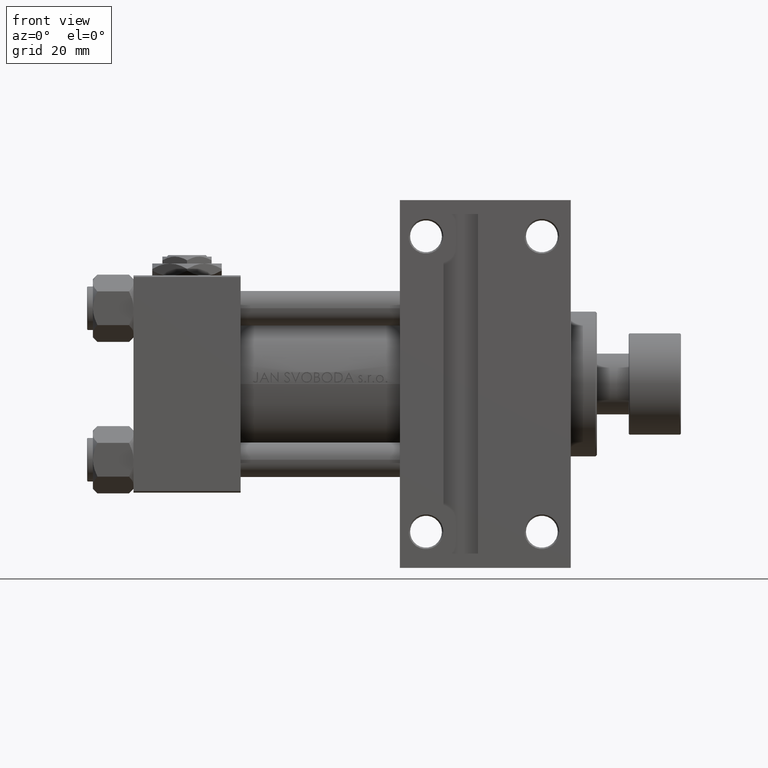
[diagram: clean part render]
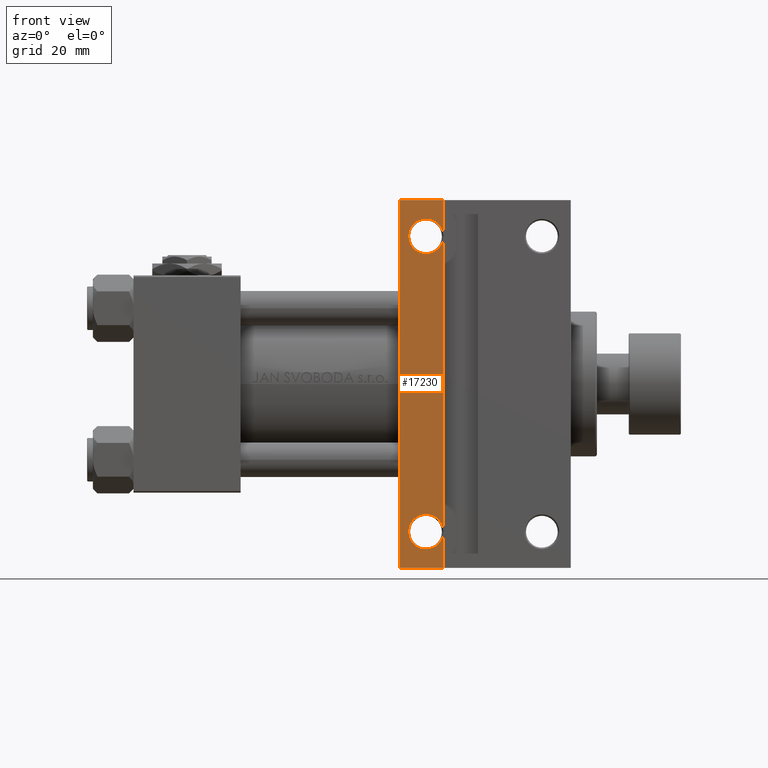
[diagram: same view with one face highlighted and labeled with its STEP entity id]
A machine part, front view. The second image highlights one B-rep face of the part: STEP entity #17230.
In plain terms, the highlighted planar face has unit normal (0, -1, 0).
Its self-contained STEP definition (entity closure, byte-faithful):
#105 = CARTESIAN_POINT ( 'NONE',  ( 100.9999999999999574, 50.99999999999999289, -37.50000000000000000 ) ) ;
#289 = EDGE_CURVE ( 'NONE', #12927, #33443, #41539, .T. ) ;
#454 = EDGE_LOOP ( 'NONE', ( #38828, #28274, #23543, #25735 ) ) ;
#623 = DIRECTION ( 'NONE',  ( -1.000000000000000000, 0.000000000000000000, 0.000000000000000000 ) ) ;
#1289 = EDGE_LOOP ( 'NONE', ( #38920, #48807 ) ) ;
#1717 = CARTESIAN_POINT ( 'NONE',  ( 91.99999999999998579, -63.50000000000000000, -37.50000000000000000 ) ) ;
#2334 = VERTEX_POINT ( 'NONE', #32263 ) ;
#3730 = CIRCLE ( 'NONE', #32907, 5.999500000000018929 ) ;
#4618 = ORIENTED_EDGE ( 'NONE', *, *, #5526, .T. ) ;
#5114 = DIRECTION ( 'NONE',  ( -1.000000000000000000, 0.000000000000000000, 0.000000000000000000 ) ) ;
#5526 = EDGE_CURVE ( 'NONE', #34748, #19124, #36085, .T. ) ;
#6908 = VERTEX_POINT ( 'NONE', #10654 ) ;
#7579 = AXIS2_PLACEMENT_3D ( 'NONE', #30463, #15497, #45945 ) ;
#7914 = FACE_BOUND ( 'NONE', #16872, .T. ) ;
#8112 = CARTESIAN_POINT ( 'NONE',  ( 100.9999999999999574, -50.99999999999999289, -37.50000000000000000 ) ) ;
#8880 = CARTESIAN_POINT ( 'NONE',  ( 106.9994999999999692, -50.99999999999999289, -37.50000000000000000 ) ) ;
#10059 = AXIS2_PLACEMENT_3D ( 'NONE', #105, #27487, #623 ) ;
#10654 = CARTESIAN_POINT ( 'NONE',  ( 107.0000000000000000, -63.50000000000000000, -37.50000000000000000 ) ) ;
#10748 = VERTEX_POINT ( 'NONE', #29274 ) ;
#10758 = CARTESIAN_POINT ( 'NONE',  ( 95.00049999999993133, 50.99999999999999289, -37.50000000000000000 ) ) ;
#11191 = FACE_BOUND ( 'NONE', #1289, .T. ) ;
#11410 = LINE ( 'NONE', #31190, #19394 ) ;
#11535 = CARTESIAN_POINT ( 'NONE',  ( 100.9999999999999574, -50.99999999999999289, -37.50000000000000000 ) ) ;
#12472 = DIRECTION ( 'NONE',  ( -0.000000000000000000, -0.000000000000000000, 1.000000000000000000 ) ) ;
#12927 = VERTEX_POINT ( 'NONE', #37139 ) ;
#12959 = CARTESIAN_POINT ( 'NONE',  ( 100.9999999999999574, 50.99999999999999289, -37.50000000000000000 ) ) ;
#14028 = AXIS2_PLACEMENT_3D ( 'NONE', #12959, #12472, #5114 ) ;
#15133 = DIRECTION ( 'NONE',  ( 0.000000000000000000, 1.000000000000000000, 0.000000000000000000 ) ) ;
#15151 = CARTESIAN_POINT ( 'NONE',  ( 92.00000000000000000, 63.50000000000000000, -37.50000000000000000 ) ) ;
#15338 = EDGE_CURVE ( 'NONE', #33443, #12927, #21414, .T. ) ;
#15497 = DIRECTION ( 'NONE',  ( 0.000000000000000000, 0.000000000000000000, -1.000000000000000000 ) ) ;
#15799 = CARTESIAN_POINT ( 'NONE',  ( 92.00000000000000000, 37.50000000000000000, -37.50000000000000000 ) ) ;
#15856 = DIRECTION ( 'NONE',  ( -0.000000000000000000, -0.000000000000000000, 1.000000000000000000 ) ) ;
#16872 = EDGE_LOOP ( 'NONE', ( #23309, #4618 ) ) ;
#17126 = EDGE_CURVE ( 'NONE', #10748, #2334, #19200, .T. ) ;
#17230 = ADVANCED_FACE ( 'NONE', ( #46446, #11191, #7914 ), #34520, .T. ) ;
#19124 = VERTEX_POINT ( 'NONE', #33238 ) ;
#19200 = LINE ( 'NONE', #15151, #38321 ) ;
#19394 = VECTOR ( 'NONE', #26870, 1000.000000000000000 ) ;
#21414 = CIRCLE ( 'NONE', #10059, 5.999500000000018929 ) ;
#23309 = ORIENTED_EDGE ( 'NONE', *, *, #23387, .T. ) ;
#23387 = EDGE_CURVE ( 'NONE', #19124, #34748, #3730, .T. ) ;
#23543 = ORIENTED_EDGE ( 'NONE', *, *, #36151, .F. ) ;
#23572 = EDGE_CURVE ( 'NONE', #6908, #2334, #34655, .T. ) ;
#25735 = ORIENTED_EDGE ( 'NONE', *, *, #17126, .T. ) ;
#26870 = DIRECTION ( 'NONE',  ( -1.000000000000000000, 4.704334850106596780E-16, -0.000000000000000000 ) ) ;
#27487 = DIRECTION ( 'NONE',  ( -0.000000000000000000, -0.000000000000000000, 1.000000000000000000 ) ) ;
#27633 = VECTOR ( 'NONE', #46758, 1000.000000000000000 ) ;
#28274 = ORIENTED_EDGE ( 'NONE', *, *, #35309, .T. ) ;
#29274 = CARTESIAN_POINT ( 'NONE',  ( 92.00000000000000000, 63.50000000000000000, -37.50000000000000000 ) ) ;
#30463 = CARTESIAN_POINT ( 'NONE',  ( 151.0000000000000000, 37.50000000000000000, -37.50000000000000000 ) ) ;
#30612 = DIRECTION ( 'NONE',  ( 1.000000000000000000, 0.000000000000000000, 0.000000000000000000 ) ) ;
#31181 = AXIS2_PLACEMENT_3D ( 'NONE', #11535, #15856, #38670 ) ;
#31190 = CARTESIAN_POINT ( 'NONE',  ( 91.99999999999998579, -63.50000000000000000, -37.50000000000000000 ) ) ;
#31280 = VECTOR ( 'NONE', #15133, 1000.000000000000000 ) ;
#32263 = CARTESIAN_POINT ( 'NONE',  ( 107.0000000000000000, 63.50000000000000000, -37.50000000000000000 ) ) ;
#32907 = AXIS2_PLACEMENT_3D ( 'NONE', #8112, #38774, #47165 ) ;
#33238 = CARTESIAN_POINT ( 'NONE',  ( 95.00049999999993133, -50.99999999999999289, -37.50000000000000000 ) ) ;
#33443 = VERTEX_POINT ( 'NONE', #10758 ) ;
#34520 = PLANE ( 'NONE',  #7579 ) ;
#34655 = LINE ( 'NONE', #49162, #31280 ) ;
#34748 = VERTEX_POINT ( 'NONE', #8880 ) ;
#35062 = LINE ( 'NONE', #15799, #27633 ) ;
#35309 = EDGE_CURVE ( 'NONE', #6908, #39813, #11410, .T. ) ;
#36085 = CIRCLE ( 'NONE', #31181, 5.999500000000018929 ) ;
#36151 = EDGE_CURVE ( 'NONE', #10748, #39813, #35062, .T. ) ;
#37139 = CARTESIAN_POINT ( 'NONE',  ( 106.9994999999999692, 50.99999999999999289, -37.50000000000000000 ) ) ;
#38321 = VECTOR ( 'NONE', #30612, 1000.000000000000000 ) ;
#38670 = DIRECTION ( 'NONE',  ( -1.000000000000000000, 0.000000000000000000, 0.000000000000000000 ) ) ;
#38774 = DIRECTION ( 'NONE',  ( -0.000000000000000000, -0.000000000000000000, 1.000000000000000000 ) ) ;
#38828 = ORIENTED_EDGE ( 'NONE', *, *, #23572, .F. ) ;
#38920 = ORIENTED_EDGE ( 'NONE', *, *, #15338, .T. ) ;
#39813 = VERTEX_POINT ( 'NONE', #1717 ) ;
#41539 = CIRCLE ( 'NONE', #14028, 5.999500000000018929 ) ;
#45945 = DIRECTION ( 'NONE',  ( -1.000000000000000000, 0.000000000000000000, -0.000000000000000000 ) ) ;
#46446 = FACE_OUTER_BOUND ( 'NONE', #454, .T. ) ;
#46758 = DIRECTION ( 'NONE',  ( 0.000000000000000000, -1.000000000000000000, 0.000000000000000000 ) ) ;
#47165 = DIRECTION ( 'NONE',  ( -1.000000000000000000, 0.000000000000000000, 0.000000000000000000 ) ) ;
#48807 = ORIENTED_EDGE ( 'NONE', *, *, #289, .T. ) ;
#49162 = CARTESIAN_POINT ( 'NONE',  ( 107.0000000000000000, -63.50000000000000000, -37.50000000000000000 ) ) ;